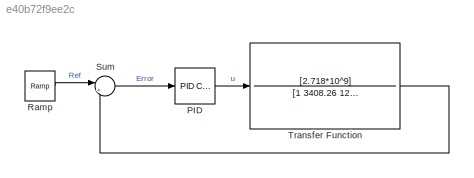
MODEL slx_e40b72f9ee2c
KIND model
BLOCK [Reference] PID   REF=simulink/Continuous/PID Controller
  AntiWindupMode = none
  Controller = PID
  D = 0.00218666145279094
  DOutDataTypeStr = Inherit: Inherit via internal rule
  DOutMax = [ ]
  DOutMin = [ ]
  DParamDataTypeStr = Inherit: Inherit via internal rule
  DParamMax = [ ]
  DParamMin = [ ]
  DifferentiatorICPrevScaledInput = 0
  DifferentiatorOutDataTypeStr = Inherit: Inherit via internal rule
  DifferentiatorOutMax = []
  DifferentiatorOutMin = []
  ExternalReset = none
  FilterContinuousStateAttributes = ''
  FilterMethod = Forward Euler
  FilterOutDataTypeStr = Inherit: Inherit via internal rule
  FilterOutMax = [ ]
  FilterOutMin = [ ]
  FilterRTWStateStorageClass = Auto
  FilterStateMustResolveToSignalObject = off
  Form = Ideal
  I = 6.56949071679749
  IOutDataTypeStr = Inherit: Inherit via internal rule
  IOutMax = [ ]
  IOutMin = [ ]
  IParamDataTypeStr = Inherit: Inherit via internal rule
  IParamMax = [ ]
  IParamMin = [ ]
  IgnoreLimit = off
  InitialConditionForFilter = 0
  InitialConditionForIntegrator = 8.9768
  InitialConditionSource = internal
  IntegratorContinuousStateAttributes = ''
  IntegratorMethod = Forward Euler
  IntegratorOutDataTypeStr = Inherit: Inherit via internal rule
  IntegratorOutMax = [ ]
  IntegratorOutMin = [ ]
  IntegratorRTWStateStorageClass = Auto
  IntegratorStateMustResolveToSignalObject = off
  Kb = 1
  KbOutDataTypeStr = Inherit: Inherit via internal rule
  KbOutMax = [ ]
  KbOutMin = [ ]
  KbParamDataTypeStr = Inherit: Inherit via internal rule
  KbParamMax = [ ]
  KbParamMin = [ ]
  Kt = 1
  KtOutDataTypeStr = Inherit: Inherit via internal rule
  KtOutMax = [ ]
  KtOutMin = [ ]
  KtParamDataTypeStr = Inherit: Inherit via internal rule
  KtParamMax = [ ]
  KtParamMin = [ ]
  LimitOutput = off
  LinearizeAsGain = off
  LockScale = off
  LowerSaturationLimit = -inf
  N = 4155.40590797424
  NOutDataTypeStr = Inherit: Inherit via internal rule
  NOutMax = [ ]
  NOutMin = [ ]
  NParamDataTypeStr = Inherit: Inherit via internal rule
  NParamMax = [ ]
  NParamMin = [ ]
  P = 0.363183513001301
  POutDataTypeStr = Inherit: Inherit via internal rule
  POutMax = [ ]
  POutMin = [ ]
  PParamDataTypeStr = Inherit: Inherit via internal rule
  PParamMax = [ ]
  PParamMin = [ ]
  Ports = [1, 1]
  RndMeth = Floor
  SampleTime = -1
  SaturateOnIntegerOverflow = off
  SaturationOutDataTypeStr = Inherit: Same as input
  SaturationOutMax = [ ]
  SaturationOutMin = [ ]
  SourceBlock = simulink/Continuous/PID Controller
  SourceType = PID 1dof
  SumAccumDataTypeStr = Inherit: Inherit via internal rule
  SumDAccumDataTypeStr = Inherit: Inherit via internal rule
  SumDOutDataTypeStr = Inherit: Inherit via internal rule
  SumDOutMax = [ ]
  SumDOutMin = [ ]
  SumI1AccumDataTypeStr = Inherit: Inherit via internal rule
  SumI1OutDataTypeStr = Inherit: Inherit via internal rule
  SumI1OutMax = [ ]
  SumI1OutMin = [ ]
  SumI2AccumDataTypeStr = Inherit: Inherit via internal rule
  SumI2OutDataTypeStr = Inherit: Inherit via internal rule
  SumI2OutMax = [ ]
  SumI2OutMin = [ ]
  SumI3AccumDataTypeStr = Inherit: Inherit via internal rule
  SumI3OutDataTypeStr = Inherit: Inherit via internal rule
  SumI3OutMax = [ ]
  SumI3OutMin = [ ]
  SumOutDataTypeStr = Inherit: Inherit via internal rule
  SumOutMax = [ ]
  SumOutMin = [ ]
  TimeDomain = Continuous-time
  TrackingMode = off
  UpperSaturationLimit = inf
  UseFilter = on
  ZeroCross = off
BLOCK [Reference] Ramp  REF=simulink/Sources/Ramp
  Ports = [0, 1]
  SourceBlock = simulink/Sources/Ramp
  SourceType = Ramp
  VectorParams1D = on
  X0 = 0
  slope = 1
  start = 0
BLOCK [Sum] Sum
  IconShape = round
  InputSameDT = off
  Inputs = |+-
  OutDataTypeStr = Inherit: Inherit via internal rule
  Ports = [2, 1]
  SaturateOnIntegerOverflow = off
BLOCK [TransferFcn] Transfer Function
  Denominator = [1 3408.26 1203982.26 0]
  Numerator = [2.718*10^9]
LINE PID :1 -> Transfer Function:1
LINE Ramp:1 -> Sum:1
LINE Sum:1 -> PID :1
LINE Transfer Function:1 -> Sum:2
